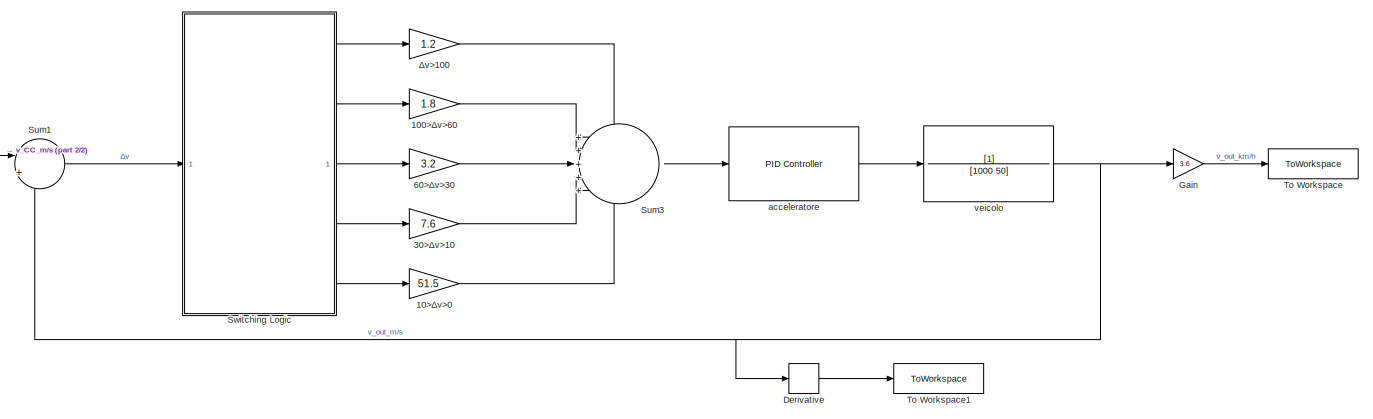
[diagram: root canvas - part 1/2, most of the canvas]
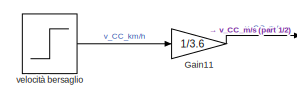
[diagram: root canvas - part 2/2, middle left region]
MODEL slx_7f51bb4cbabb
KIND model
CONFIG AbsTol = auto
CONFIG EnableMultiTasking = off
CONFIG FixedStep = auto
CONFIG MaxStep = auto
CONFIG MinStep = auto
CONFIG RelTol = 1e-3
CONFIG SampleTimeConstraint = Unconstrained
CONFIG SolverName = VariableStepAuto
CONFIG StartTime = 0.0
CONFIG StopTime = 20
BLOCK [Gain] 100>Δv>60
  Gain = 1.8
BLOCK [Gain] 10>Δv>0
  Gain = 51.5
BLOCK [Gain] 30>Δv>10
  Gain = 7.6
BLOCK [Gain] 60>Δv>30
  Gain = 3.2
BLOCK [Derivative] Derivative
BLOCK [Gain] Gain
  Gain = 3.6
BLOCK [Gain] Gain11
  Gain = 1/3.6
BLOCK [Sum] Sum1
  Inputs = |+-
BLOCK [Sum] Sum3
  Inputs = +++++
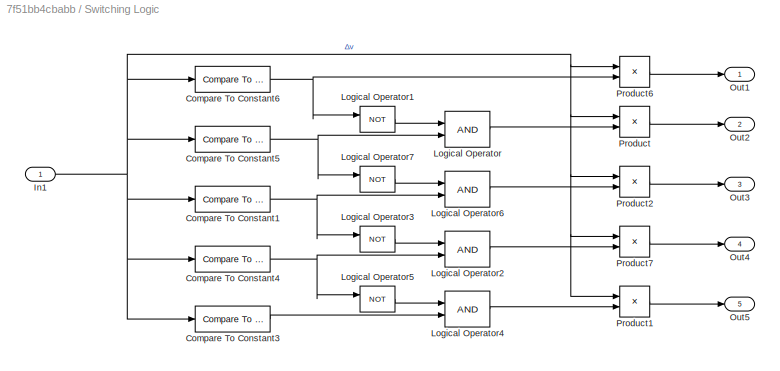
BLOCK [SubSystem] Switching Logic
BLOCK [Reference] Switching Logic/Compare To Constant1  REF=simulink/Logic and Bit
Operations/Compare
To Constant
  SourceBlock = simulink/Logic and Bit\nOperations/Compare\nTo Constant
  SourceType = Compare To Constant
BLOCK [Reference] Switching Logic/Compare To Constant3  REF=simulink/Logic and Bit
Operations/Compare
To Constant
  SourceBlock = simulink/Logic and Bit\nOperations/Compare\nTo Constant
  SourceType = Compare To Constant
BLOCK [Reference] Switching Logic/Compare To Constant4  REF=simulink/Logic and Bit
Operations/Compare
To Constant
  SourceBlock = simulink/Logic and Bit\nOperations/Compare\nTo Constant
  SourceType = Compare To Constant
BLOCK [Reference] Switching Logic/Compare To Constant5  REF=simulink/Logic and Bit
Operations/Compare
To Constant
  SourceBlock = simulink/Logic and Bit\nOperations/Compare\nTo Constant
  SourceType = Compare To Constant
BLOCK [Reference] Switching Logic/Compare To Constant6  REF=simulink/Logic and Bit
Operations/Compare
To Constant
  SourceBlock = simulink/Logic and Bit\nOperations/Compare\nTo Constant
  SourceType = Compare To Constant
BLOCK [Inport] Switching Logic/In1
  IconDisplay = Signal name
BLOCK [Logic] Switching Logic/Logical Operator
  AllPortsSameDT = off
  OutDataTypeStr = boolean
BLOCK [Logic] Switching Logic/Logical Operator1
  AllPortsSameDT = off
  Operator = NOT
  OutDataTypeStr = boolean
BLOCK [Logic] Switching Logic/Logical Operator2
  AllPortsSameDT = off
  OutDataTypeStr = boolean
BLOCK [Logic] Switching Logic/Logical Operator3
  AllPortsSameDT = off
  Operator = NOT
  OutDataTypeStr = boolean
BLOCK [Logic] Switching Logic/Logical Operator4
  AllPortsSameDT = off
  OutDataTypeStr = boolean
BLOCK [Logic] Switching Logic/Logical Operator5
  AllPortsSameDT = off
  Operator = NOT
  OutDataTypeStr = boolean
BLOCK [Logic] Switching Logic/Logical Operator6
  AllPortsSameDT = off
  OutDataTypeStr = boolean
BLOCK [Logic] Switching Logic/Logical Operator7
  AllPortsSameDT = off
  Operator = NOT
  OutDataTypeStr = boolean
BLOCK [Outport] Switching Logic/Out1
BLOCK [Outport] Switching Logic/Out2
  Port = 2
BLOCK [Outport] Switching Logic/Out3
  Port = 3
BLOCK [Outport] Switching Logic/Out4
  Port = 4
BLOCK [Outport] Switching Logic/Out5
  Port = 5
BLOCK [Product] Switching Logic/Product
BLOCK [Product] Switching Logic/Product1
BLOCK [Product] Switching Logic/Product2
BLOCK [Product] Switching Logic/Product6
BLOCK [Product] Switching Logic/Product7
BLOCK [ToWorkspace] To Workspace
  FixptAsFi = on
  MaxDataPoints = inf
  SampleTime = -1
  VariableName = velocit
BLOCK [ToWorkspace] To Workspace1
  FixptAsFi = on
  MaxDataPoints = inf
  SampleTime = -1
  VariableName = accelerazione
BLOCK [Reference] acceleratore  REF=slpidlib/PID Controller
  SourceBlock = slpidlib/PID Controller
  SourceType = PID 1dof
BLOCK [TransferFcn] veicolo
  Denominator = [1000 50]
BLOCK [Step] velocità bersaglio
  After = 15
  SampleTime = 0.0001
  Time = 0
BLOCK [Gain] Δv>100
  Gain = 1.2
LINE 100>Δv>60:1 -> Sum3:2
LINE 10>Δv>0:1 -> Sum3:5
LINE 30>Δv>10:1 -> Sum3:4
LINE 60>Δv>30:1 -> Sum3:3
LINE Derivative:1 -> To Workspace1:1
LINE Gain11:1 -> Sum1:1
LINE Gain:1 -> To Workspace:1
LINE Sum1:1 -> Switching Logic:1
LINE Sum3:1 -> acceleratore:1
NET Switching Logic/Compare To Constant1:1 -> Switching Logic/Logical Operator3:1, Switching Logic/Logical Operator6:2
LINE Switching Logic/Compare To Constant3:1 -> Switching Logic/Logical Operator4:2
NET Switching Logic/Compare To Constant4:1 -> Switching Logic/Logical Operator2:2, Switching Logic/Logical Operator5:1
NET Switching Logic/Compare To Constant5:1 -> Switching Logic/Logical Operator7:1, Switching Logic/Logical Operator:2
NET Switching Logic/Compare To Constant6:1 -> Switching Logic/Logical Operator1:1, Switching Logic/Product6:2
NET Switching Logic/In1:1 -> Switching Logic/Compare To Constant1:1, Switching Logic/Compare To Constant3:1, Switching Logic/Compare To Constant4:1, Switching Logic/Compare To Constant5:1, Switching Logic/Compare To Constant6:1, Switching Logic/Product1:1, Switching Logic/Product2:1, Switching Logic/Product6:1, Switching Logic/Product7:1, Switching Logic/Product:1
LINE Switching Logic/Logical Operator1:1 -> Switching Logic/Logical Operator:1
LINE Switching Logic/Logical Operator2:1 -> Switching Logic/Product7:2
LINE Switching Logic/Logical Operator3:1 -> Switching Logic/Logical Operator2:1
LINE Switching Logic/Logical Operator4:1 -> Switching Logic/Product1:2
LINE Switching Logic/Logical Operator5:1 -> Switching Logic/Logical Operator4:1
LINE Switching Logic/Logical Operator6:1 -> Switching Logic/Product2:2
LINE Switching Logic/Logical Operator7:1 -> Switching Logic/Logical Operator6:1
LINE Switching Logic/Logical Operator:1 -> Switching Logic/Product:2
LINE Switching Logic/Product1:1 -> Switching Logic/Out5:1
LINE Switching Logic/Product2:1 -> Switching Logic/Out3:1
LINE Switching Logic/Product6:1 -> Switching Logic/Out1:1
LINE Switching Logic/Product7:1 -> Switching Logic/Out4:1
LINE Switching Logic/Product:1 -> Switching Logic/Out2:1
LINE Switching Logic:1 -> Δv>100:1
LINE Switching Logic:2 -> 100>Δv>60:1
LINE Switching Logic:3 -> 60>Δv>30:1
LINE Switching Logic:4 -> 30>Δv>10:1
LINE Switching Logic:5 -> 10>Δv>0:1
LINE acceleratore:1 -> veicolo:1
NET veicolo:1 -> Derivative:1, Gain:1, Sum1:2
LINE velocità bersaglio:1 -> Gain11:1
LINE Δv>100:1 -> Sum3:1
note: NET lines group one-source signal fan-out (src -> all destinations, sorted); 1:1 wires keep LINE
